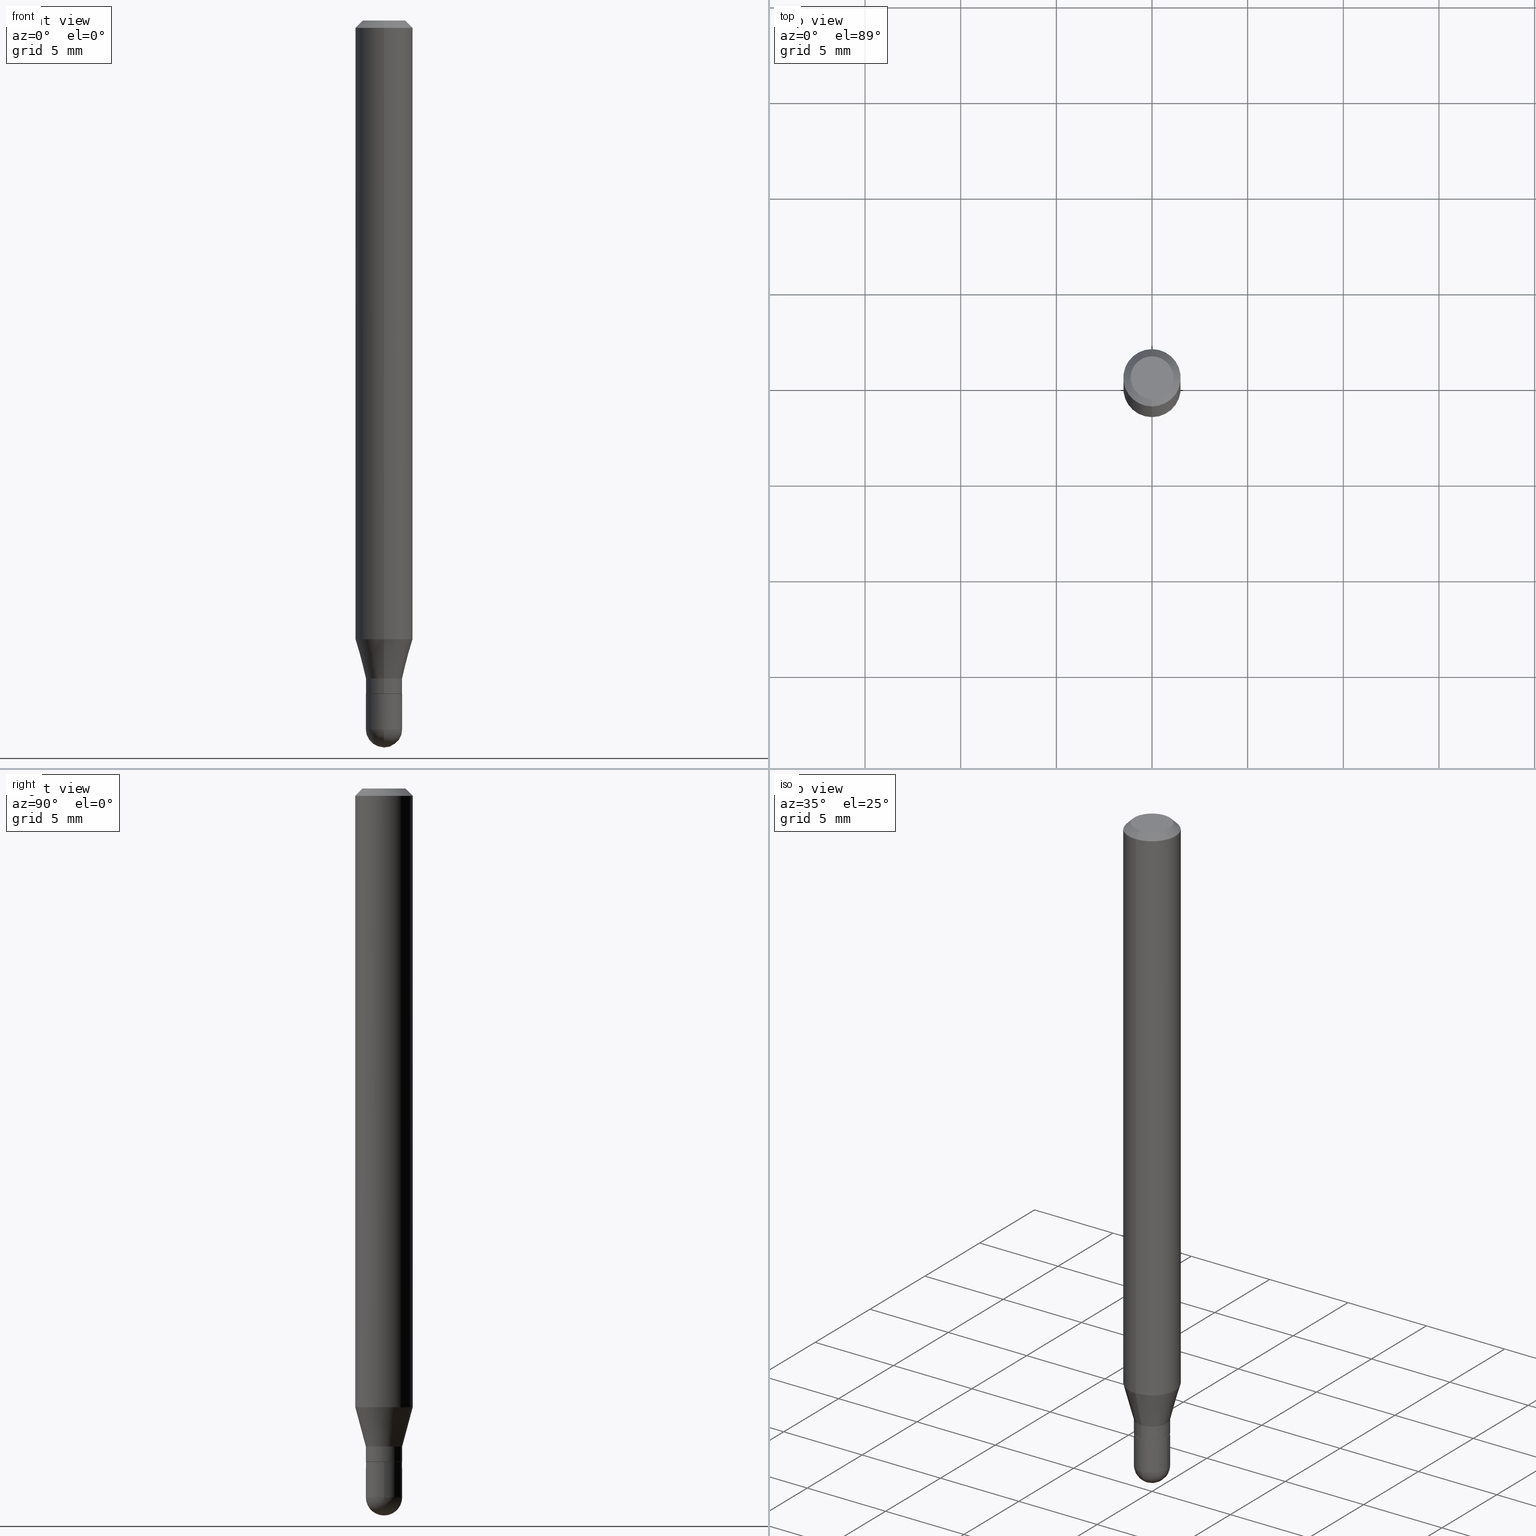
[diagram: canonical four-view strip — front | top / right | iso, engineering-drawing reading convention]
A machine part, canonical four-view strip (front | top / right | iso — engineering-drawing reading convention). The complete STEP part file that produces these views, byte-faithful:
ISO-10303-21;
HEADER;
FILE_DESCRIPTION (( 'STEP AP203' ),
    '1' );
FILE_NAME ('02936.STEP',
    '2024-03-07T21:52:10',
    ( '' ),
    ( '' ),
    'SwSTEP 2.0',
    'SolidWorks 2023',
    '' );
FILE_SCHEMA (( 'CONFIG_CONTROL_DESIGN' ));
ENDSEC;

DATA;
#1 = ORIENTED_EDGE ( 'NONE', *, *, #473, .T. ) ;
#2 = ADVANCED_FACE ( 'NONE', ( #359 ), #448, .T. ) ;
#3 = SPHERICAL_SURFACE ( 'NONE', #140, 0.03739999999999999575 ) ;
#4 = ORIENTED_EDGE ( 'NONE', *, *, #281, .T. ) ;
#5 = AXIS2_PLACEMENT_3D ( 'NONE', #306, #431, #347 ) ;
#6 = PERSON_AND_ORGANIZATION_ROLE ( 'creator' ) ;
#7 = CARTESIAN_POINT ( 'NONE',  ( 4.195754854663704558E-16, 0.05904999999999994975, -0.01500000000000029955 ) ) ;
#8 = ORIENTED_EDGE ( 'NONE', *, *, #374, .T. ) ;
#9 = DIRECTION ( 'NONE',  ( 1.000000000000000000, -6.982962677686265922E-15, 4.883557194083112901E-29 ) ) ;
#10 = DIRECTION ( 'NONE',  ( 6.982962677686265922E-15, 1.000000000000000000, -3.491556839184075306E-15 ) ) ;
#11 = DIRECTION ( 'NONE',  ( -6.982962677686265133E-15, -1.000000000000000000, 0.000000000000000000 ) ) ;
#12 = ORIENTED_EDGE ( 'NONE', *, *, #148, .F. ) ;
#13 = DIRECTION ( 'NONE',  ( -2.445416084578850208E-29, 3.491556839184075306E-15, 1.000000000000000000 ) ) ;
#14 = CARTESIAN_POINT ( 'NONE',  ( 0.000000000000000000, 0.000000000000000000, 0.000000000000000000 ) ) ;
#15 = EDGE_CURVE ( 'NONE', #165, #488, #216, .T. ) ;
#16 = ORIENTED_EDGE ( 'NONE', *, *, #166, .F. ) ;
#17 = AXIS2_PLACEMENT_3D ( 'NONE', #283, #13, #161 ) ;
#18 = DIRECTION ( 'NONE',  ( -6.982962677686265922E-15, -1.000000000000000000, 4.626330217890369336E-15 ) ) ;
#19 = ORIENTED_EDGE ( 'NONE', *, *, #301, .T. ) ;
#20 = DIRECTION ( 'NONE',  ( -2.445468806185136597E-29, 3.491481338843145583E-15, 1.000000000000000000 ) ) ;
#21 = ORIENTED_EDGE ( 'NONE', *, *, #484, .F. ) ;
#22 = CARTESIAN_POINT ( 'NONE',  ( 3.389102151617828259E-29, -4.838948623425209322E-15, -1.385899999999999910 ) ) ;
#23 = CALENDAR_DATE ( 2024, 7, 3 ) ;
#24 = CIRCLE ( 'NONE', #413, 0.03739999999999992636 ) ;
#25 = VECTOR ( 'NONE', #443, 39.37007874015748143 ) ;
#26 = SECURITY_CLASSIFICATION_LEVEL ( 'unclassified' ) ;
#27 = DIRECTION ( 'NONE',  ( -4.937700262164674260E-15, -0.7071067811865632269, 0.7071067811865319186 ) ) ;
#28 = DIRECTION ( 'NONE',  ( -6.982962677686265133E-15, -1.000000000000000000, 3.491556839184075306E-15 ) ) ;
#29 = CARTESIAN_POINT ( 'NONE',  ( -2.611628041454307043E-16, -0.03740000000000509583, -1.458699999999999886 ) ) ;
#30 = EDGE_CURVE ( 'NONE', #311, #126, #73, .T. ) ;
#31 = DIRECTION ( 'NONE',  ( -2.445416084578850208E-29, 3.491556839184075306E-15, 1.000000000000000000 ) ) ;
#32 = VECTOR ( 'NONE', #497, 39.37007874015748143 ) ;
#33 = CIRCLE ( 'NONE', #50, 0.03739999999999999575 ) ;
#34 = AXIS2_PLACEMENT_3D ( 'NONE', #276, #9, #480 ) ;
#35 = DIRECTION ( 'NONE',  ( -2.445416084578850208E-29, 3.491556839184075306E-15, 1.000000000000000000 ) ) ;
#36 = ORGANIZATION ( 'UNSPECIFIED', 'UNSPECIFIED', '' ) ;
#37 = CARTESIAN_POINT ( 'NONE',  ( 4.195754854663699134E-16, 0.05904999999999551580, -1.273301100016134058 ) ) ;
#38 = EDGE_CURVE ( 'NONE', #440, #387, #24, .T. ) ;
#39 = VERTEX_POINT ( 'NONE', #287 ) ;
#40 = CIRCLE ( 'NONE', #328, 0.03739999999999992636 ) ;
#41 = CC_DESIGN_SECURITY_CLASSIFICATION ( #372, ( #105 ) ) ;
#42 = ADVANCED_FACE ( 'NONE', ( #295 ), #462, .T. ) ;
#43 = DIRECTION ( 'NONE',  ( -6.982962677686265133E-15, -1.000000000000000000, 0.000000000000000000 ) ) ;
#44 = ORIENTED_EDGE ( 'NONE', *, *, #221, .F. ) ;
#45 = CARTESIAN_POINT ( 'NONE',  ( -2.611628041454328736E-16, -0.03740000000000489461, -1.385399999999999965 ) ) ;
#46 = EDGE_LOOP ( 'NONE', ( #340, #312 ) ) ;
#47 = DIRECTION ( 'NONE',  ( -6.982962677686265133E-15, -1.000000000000000000, 0.000000000000000000 ) ) ;
#48 = FACE_OUTER_BOUND ( 'NONE', #46, .T. ) ;
#49 = VERTEX_POINT ( 'NONE', #377 ) ;
#50 = AXIS2_PLACEMENT_3D ( 'NONE', #175, #417, #171 ) ;
#51 = CC_DESIGN_APPROVAL ( #200, ( #99 ) ) ;
#52 = DIRECTION ( 'NONE',  ( -2.445416084578850208E-29, 3.491556839184075306E-15, 1.000000000000000000 ) ) ;
#53 = EDGE_CURVE ( 'NONE', #159, #165, #33, .T. ) ;
#54 = EDGE_LOOP ( 'NONE', ( #432, #97, #114, #444 ) ) ;
#55 = CARTESIAN_POINT ( 'NONE',  ( 3.668124126868297488E-31, -5.237335258776145500E-17, -0.01500000000000009139 ) ) ;
#56 = COORDINATED_UNIVERSAL_TIME_OFFSET ( 5, 0, .BEHIND. ) ;
#57 = AXIS2_PLACEMENT_3D ( 'NONE', #252, #139, #62 ) ;
#58 = DIRECTION ( 'NONE',  ( -6.982962677686265922E-15, -1.000000000000000000, 0.000000000000000000 ) ) ;
#59 = CIRCLE ( 'NONE', #245, 0.03739999999999999575 ) ;
#60 = EDGE_CURVE ( 'NONE', #440, #263, #335, .T. ) ;
#61 = ADVANCED_FACE ( 'NONE', ( #290 ), #425, .T. ) ;
#62 = DIRECTION ( 'NONE',  ( -6.982962677686265922E-15, -1.000000000000000000, 3.491556839184075306E-15 ) ) ;
#63 = DIRECTION ( 'NONE',  ( -6.982962677686265133E-15, -1.000000000000000000, 0.000000000000000000 ) ) ;
#64 = PERSON_AND_ORGANIZATION ( #314, #36 ) ;
#65 = CARTESIAN_POINT ( 'NONE',  ( 3.389175218491980624E-29, -4.838843987502714496E-15, -1.385899999999999910 ) ) ;
#66 = CARTESIAN_POINT ( 'NONE',  ( -4.123439461173431685E-16, -0.05905000000000448085, -1.273301100016133613 ) ) ;
#67 = AXIS2_PLACEMENT_3D ( 'NONE', #483, #20, #128 ) ;
#68 = APPROVAL_STATUS ( 'not_yet_approved' ) ;
#69 = FACE_OUTER_BOUND ( 'NONE', #189, .T. ) ;
#70 = DATE_TIME_ROLE ( 'classification_date' ) ;
#71 = LINE ( 'NONE', #511, #74 ) ;
#72 = DIRECTION ( 'NONE',  ( -2.445416084578850208E-29, 3.491556839184075306E-15, 1.000000000000000000 ) ) ;
#73 = CIRCLE ( 'NONE', #150, 0.04404999999999999888 ) ;
#74 = VECTOR ( 'NONE', #92, 39.37007874015748143 ) ;
#75 =( CONVERSION_BASED_UNIT ( 'INCH', #510 ) LENGTH_UNIT ( ) NAMED_UNIT ( #258 ) );
#76 = EDGE_LOOP ( 'NONE', ( #394, #19, #157, #348 ) ) ;
#77 = ORIENTED_EDGE ( 'NONE', *, *, #179, .T. ) ;
#78 = DIRECTION ( 'NONE',  ( 1.000000000000000000, -6.982962677686274599E-15, 0.000000000000000000 ) ) ;
#79 = APPROVAL_ROLE ( '' ) ;
#80 = CARTESIAN_POINT ( 'NONE',  ( -0.03740000000000000269, -4.700190925062328088E-15, -1.385899999999999910 ) ) ;
#81 = VECTOR ( 'NONE', #217, 39.37007874015748143 ) ;
#82 = EDGE_LOOP ( 'NONE', ( #199, #383, #397, #44 ) ) ;
#83 = LOCAL_TIME ( 16, 52, 10.00000000000000000, #146 ) ;
#84 = ORIENTED_EDGE ( 'NONE', *, *, #428, .T. ) ;
#85 = PERSON_AND_ORGANIZATION ( #314, #36 ) ;
#86 = CARTESIAN_POINT ( 'NONE',  ( 3.567205347582258439E-29, -5.093023828970496460E-15, -1.458699999999999886 ) ) ;
#87 = ORIENTED_EDGE ( 'NONE', *, *, #15, .T. ) ;
#88 = DIRECTION ( 'NONE',  ( -2.445416084578850208E-29, 3.491556839184075306E-15, 1.000000000000000000 ) ) ;
#89 = APPLICATION_CONTEXT ( 'configuration controlled 3d designs of mechanical parts and assemblies' ) ;
#90 = EDGE_CURVE ( 'NONE', #416, #466, #293, .T. ) ;
#91 = CARTESIAN_POINT ( 'NONE',  ( 3.311337920128220796E-29, -4.727917115939155716E-15, -1.354099999999999859 ) ) ;
#92 = DIRECTION ( 'NONE',  ( -1.807323732225332900E-15, -0.2588190451025185745, 0.9659258262890689783 ) ) ;
#93 = AXIS2_PLACEMENT_3D ( 'NONE', #479, #445, #384 ) ;
#94 = LOCAL_TIME ( 16, 52, 10.00000000000000000, #457 ) ;
#95 = CARTESIAN_POINT ( 'NONE',  ( 4.195754854663390985E-16, 0.05904999999999999832, -2.061764313538196479E-16 ) ) ;
#96 = LOCAL_TIME ( 16, 52, 10.00000000000000000, #119 ) ;
#97 = ORIENTED_EDGE ( 'NONE', *, *, #132, .T. ) ;
#98 = PERSON_AND_ORGANIZATION_ROLE ( 'classification_officer' ) ;
#99 = PRODUCT_DEFINITION ( 'UNKNOWN', '', #105, #437 ) ;
#100 = CLOSED_SHELL ( 'NONE', ( #2, #309, #113, #313, #346 ) ) ;
#101 = DIRECTION ( 'NONE',  ( -6.982962677686265133E-15, -1.000000000000000000, 3.491556839184075306E-15 ) ) ;
#102 = LOCAL_TIME ( 16, 52, 10.00000000000000000, #56 ) ;
#103 = DATE_AND_TIME ( #456, #83 ) ;
#104 = DATE_TIME_ROLE ( 'creation_date' ) ;
#105 = PRODUCT_DEFINITION_FORMATION_WITH_SPECIFIED_SOURCE ( 'ANY', '', #349, .NOT_KNOWN. ) ;
#106 = ADVANCED_BREP_SHAPE_REPRESENTATION ( '02936', ( #111, #112, #257 ), #251 ) ;
#107 = CARTESIAN_POINT ( 'NONE',  ( 0.03739999999999999575, -5.227096712382071878E-15, -1.458699999999999886 ) ) ;
#108 = DIRECTION ( 'NONE',  ( -6.982962677686265133E-15, -1.000000000000000000, 0.000000000000000000 ) ) ;
#109 = ORIENTED_EDGE ( 'NONE', *, *, #428, .F. ) ;
#110 = ORIENTED_EDGE ( 'NONE', *, *, #30, .F. ) ;
#111 = MANIFOLD_SOLID_BREP ( 'Body-Move/Copy2[1]', #100 ) ;
#112 = MANIFOLD_SOLID_BREP ( 'Body-Move/Copy2[2]', #278 ) ;
#113 = ADVANCED_FACE ( 'NONE', ( #331 ), #218, .F. ) ;
#114 = ORIENTED_EDGE ( 'NONE', *, *, #53, .F. ) ;
#115 = AXIS2_PLACEMENT_3D ( 'NONE', #512, #286, #58 ) ;
#116 = CIRCLE ( 'NONE', #163, 0.05904999999999999832 ) ;
#117 = DIRECTION ( 'NONE',  ( 4.937700262164548042E-15, 0.7071067811865451302, -0.7071067811865499042 ) ) ;
#118 = CARTESIAN_POINT ( 'NONE',  ( -2.611628041454327257E-16, -0.03740000000000465175, -1.354099999999999859 ) ) ;
#119 = COORDINATED_UNIVERSAL_TIME_OFFSET ( 5, 0, .BEHIND. ) ;
#120 = ORIENTED_EDGE ( 'NONE', *, *, #179, .F. ) ;
#121 = LINE ( 'NONE', #164, #433 ) ;
#122 = ORIENTED_EDGE ( 'NONE', *, *, #430, .F. ) ;
#123 = AXIS2_PLACEMENT_3D ( 'NONE', #404, #177, #334 ) ;
#124 = DIRECTION ( 'NONE',  ( 1.000000000000000000, -6.982962677686276177E-15, 0.000000000000000000 ) ) ;
#125 = CARTESIAN_POINT ( 'NONE',  ( 2.241504749547328887E-45, -3.200412922651327625E-31, -9.166148712616163754E-17 ) ) ;
#126 = VERTEX_POINT ( 'NONE', #190 ) ;
#127 = CARTESIAN_POINT ( 'NONE',  ( 3.564007025660728008E-29, -5.097604007999306661E-15, -1.458699999999999886 ) ) ;
#128 = DIRECTION ( 'NONE',  ( 1.000000000000000000, -6.982962677686276177E-15, 0.000000000000000000 ) ) ;
#129 = ORIENTED_EDGE ( 'NONE', *, *, #38, .T. ) ;
#130 = AXIS2_PLACEMENT_3D ( 'NONE', #375, #35, #28 ) ;
#131 = CARTESIAN_POINT ( 'NONE',  ( 3.668124126868297488E-31, -5.237335258776145500E-17, -0.01500000000000009139 ) ) ;
#132 = EDGE_CURVE ( 'NONE', #227, #165, #441, .T. ) ;
#133 = APPLICATION_CONTEXT ( 'configuration controlled 3d designs of mechanical parts and assemblies' ) ;
#134 = DIRECTION ( 'NONE',  ( -6.982962677686265133E-15, -1.000000000000000000, 0.000000000000000000 ) ) ;
#135 = CARTESIAN_POINT ( 'NONE',  ( -4.123439461173736383E-16, -0.05905000000000005383, -0.01499999999999988495 ) ) ;
#136 = ADVANCED_FACE ( 'NONE', ( #336 ), #212, .T. ) ;
#137 = FACE_OUTER_BOUND ( 'NONE', #308, .T. ) ;
#138 = COORDINATED_UNIVERSAL_TIME_OFFSET ( 5, 0, .BEHIND. ) ;
#139 = DIRECTION ( 'NONE',  ( -2.445416084578850208E-29, 3.491556839184075306E-15, 1.000000000000000000 ) ) ;
#140 = AXIS2_PLACEMENT_3D ( 'NONE', #474, #354, #147 ) ;
#141 = ADVANCED_FACE ( 'NONE', ( #137 ), #501, .T. ) ;
#142 = CARTESIAN_POINT ( 'NONE',  ( 2.621902694955108069E-16, 0.03689999999999515889, -1.385899999999999910 ) ) ;
#143 = ORIENTED_EDGE ( 'NONE', *, *, #506, .F. ) ;
#144 = CIRCLE ( 'NONE', #353, 0.03739999999999992636 ) ;
#145 = ORIENTED_EDGE ( 'NONE', *, *, #430, .T. ) ;
#146 = COORDINATED_UNIVERSAL_TIME_OFFSET ( 5, 0, .BEHIND. ) ;
#147 = DIRECTION ( 'NONE',  ( -6.982962677686265922E-15, -1.000000000000000000, 0.000000000000000000 ) ) ;
#148 = EDGE_CURVE ( 'NONE', #192, #263, #361, .T. ) ;
#149 = ORIENTED_EDGE ( 'NONE', *, *, #208, .T. ) ;
#150 = AXIS2_PLACEMENT_3D ( 'NONE', #125, #52, #195 ) ;
#151 = ORIENTED_EDGE ( 'NONE', *, *, #326, .F. ) ;
#152 = AXIS2_PLACEMENT_3D ( 'NONE', #154, #363, #322 ) ;
#153 =( NAMED_UNIT ( * ) SI_UNIT ( $, .STERADIAN. ) SOLID_ANGLE_UNIT ( ) );
#154 = CARTESIAN_POINT ( 'NONE',  ( 3.387879443575538976E-29, -4.837202845005617549E-15, -1.385399999999999965 ) ) ;
#155 = DIRECTION ( 'NONE',  ( -2.445468806185136597E-29, 3.491481338843145583E-15, 1.000000000000000000 ) ) ;
#156 = ORIENTED_EDGE ( 'NONE', *, *, #447, .T. ) ;
#157 = ORIENTED_EDGE ( 'NONE', *, *, #90, .T. ) ;
#158 = FACE_OUTER_BOUND ( 'NONE', #76, .T. ) ;
#159 = VERTEX_POINT ( 'NONE', #339 ) ;
#160 = DIRECTION ( 'NONE',  ( 6.982962677686265922E-15, 1.000000000000000000, -3.505890868245046092E-15 ) ) ;
#161 = DIRECTION ( 'NONE',  ( -6.982962677686265133E-15, -1.000000000000000000, 0.000000000000000000 ) ) ;
#162 = VECTOR ( 'NONE', #327, 39.37007874015748143 ) ;
#163 = AXIS2_PLACEMENT_3D ( 'NONE', #318, #316, #18 ) ;
#164 = CARTESIAN_POINT ( 'NONE',  ( 0.03739999999999999575, -2.611628041454663509E-16, 1.823690114147680082E-30 ) ) ;
#165 = VERTEX_POINT ( 'NONE', #29 ) ;
#166 = EDGE_CURVE ( 'NONE', #39, #440, #174, .T. ) ;
#167 = MECHANICAL_CONTEXT ( 'NONE', #89, 'mechanical' ) ;
#168 = PERSON_AND_ORGANIZATION ( #314, #36 ) ;
#169 = CIRCLE ( 'NONE', #204, 0.03740000000000000269 ) ;
#170 = CIRCLE ( 'NONE', #152, 0.03739999999999992636 ) ;
#171 = DIRECTION ( 'NONE',  ( 1.000000000000000000, -6.982962677686276177E-15, 0.000000000000000000 ) ) ;
#172 = ADVANCED_FACE ( 'NONE', ( #424 ), #500, .T. ) ;
#173 = ORIENTED_EDGE ( 'NONE', *, *, #202, .T. ) ;
#174 = LINE ( 'NONE', #332, #32 ) ;
#175 = CARTESIAN_POINT ( 'NONE',  ( 3.567205347582258439E-29, -5.093023828970496460E-15, -1.458699999999999886 ) ) ;
#176 = DIRECTION ( 'NONE',  ( -2.445416084578850208E-29, 3.491556839184075306E-15, 1.000000000000000000 ) ) ;
#177 = DIRECTION ( 'NONE',  ( -2.445468806185136597E-29, 3.491481338843145583E-15, 1.000000000000000000 ) ) ;
#178 = AXIS2_PLACEMENT_3D ( 'NONE', #254, #31, #423 ) ;
#179 = EDGE_CURVE ( 'NONE', #471, #284, #185, .T. ) ;
#180 = DIRECTION ( 'NONE',  ( -2.445468806185136597E-29, 3.491481338843145583E-15, 1.000000000000000000 ) ) ;
#181 = AXIS2_PLACEMENT_3D ( 'NONE', #356, #446, #10 ) ;
#182 = VERTEX_POINT ( 'NONE', #299 ) ;
#183 = EDGE_LOOP ( 'NONE', ( #223, #173, #436, #407 ) ) ;
#184 = CYLINDRICAL_SURFACE ( 'NONE', #233, 0.05904999999999999832 ) ;
#185 = CIRCLE ( 'NONE', #303, 0.03740000000000000269 ) ;
#186 = ADVANCED_FACE ( 'NONE', ( #455 ), #209, .T. ) ;
#187 = AXIS2_PLACEMENT_3D ( 'NONE', #226, #305, #469 ) ;
#188 = DIRECTION ( 'NONE',  ( 2.438088387897960049E-29, -3.491481338843145188E-15, -1.000000000000000000 ) ) ;
#189 = EDGE_LOOP ( 'NONE', ( #201, #317, #324, #355 ) ) ;
#190 = CARTESIAN_POINT ( 'NONE',  ( -3.536586717851222218E-16, -0.04404999999999999888, 6.214159163989687585E-17 ) ) ;
#191 = VERTEX_POINT ( 'NONE', #135 ) ;
#192 = VERTEX_POINT ( 'NONE', #66 ) ;
#193 = DIRECTION ( 'NONE',  ( -2.445416084578850208E-29, 3.491556839184075306E-15, 1.000000000000000000 ) ) ;
#194 = PERSON_AND_ORGANIZATION_ROLE ( 'design_owner' ) ;
#195 = DIRECTION ( 'NONE',  ( -6.982962677686265133E-15, -1.000000000000000000, 3.491556839184075306E-15 ) ) ;
#196 = ORIENTED_EDGE ( 'NONE', *, *, #326, .T. ) ;
#197 = DIRECTION ( 'NONE',  ( 1.000000000000000000, -7.105427357601001070E-15, 4.926315508542082329E-29 ) ) ;
#198 = CARTESIAN_POINT ( 'NONE',  ( -2.576713228065893242E-16, -0.03690000000000483865, -1.385899999999999910 ) ) ;
#199 = ORIENTED_EDGE ( 'NONE', *, *, #365, .T. ) ;
#200 = APPROVAL ( #236, 'UNSPECIFIED' ) ;
#201 = ORIENTED_EDGE ( 'NONE', *, *, #148, .T. ) ;
#202 = EDGE_CURVE ( 'NONE', #49, #39, #292, .T. ) ;
#203 = VECTOR ( 'NONE', #27, 39.37007874015748143 ) ;
#204 = AXIS2_PLACEMENT_3D ( 'NONE', #486, #369, #78 ) ;
#205 = CALENDAR_DATE ( 2024, 7, 3 ) ;
#206 = DIRECTION ( 'NONE',  ( -2.445416084578850208E-29, 3.491556839184075306E-15, 1.000000000000000000 ) ) ;
#207 = EDGE_LOOP ( 'NONE', ( #291, #84, #156, #259 ) ) ;
#208 = EDGE_CURVE ( 'NONE', #323, #191, #244, .T. ) ;
#209 = CYLINDRICAL_SURFACE ( 'NONE', #57, 0.05904999999999999832 ) ;
#210 = AXIS2_PLACEMENT_3D ( 'NONE', #127, #197, #239 ) ;
#211 = DIRECTION ( 'NONE',  ( -2.445416084578850208E-29, 3.491556839184075306E-15, 1.000000000000000000 ) ) ;
#212 = CYLINDRICAL_SURFACE ( 'NONE', #130, 0.03739999999999992636 ) ;
#213 = CARTESIAN_POINT ( 'NONE',  ( -2.611628041454658086E-16, -0.03739999999999992636, 1.305842257854841589E-16 ) ) ;
#214 = APPROVAL_ROLE ( '' ) ;
#215 = APPROVAL_ROLE ( '' ) ;
#216 = CIRCLE ( 'NONE', #67, 0.03739999999999999575 ) ;
#217 = DIRECTION ( 'NONE',  ( 5.024295867788190974E-15, 0.7071067811865681119, 0.7071067811865270336 ) ) ;
#218 = PLANE ( 'NONE',  #467 ) ;
#219 = CARTESIAN_POINT ( 'NONE',  ( 3.389102151617828259E-29, -4.838948623425209322E-15, -1.385899999999999910 ) ) ;
#220 = ORIENTED_EDGE ( 'NONE', *, *, #266, .T. ) ;
#221 = EDGE_CURVE ( 'NONE', #466, #387, #381, .T. ) ;
#222 = DIRECTION ( 'NONE',  ( -2.445416084578849928E-29, 3.491556839184075306E-15, 1.000000000000000000 ) ) ;
#223 = ORIENTED_EDGE ( 'NONE', *, *, #490, .T. ) ;
#224 = CIRCLE ( 'NONE', #403, 0.03690000000000000224 ) ;
#225 = CARTESIAN_POINT ( 'NONE',  ( 3.387879443575538976E-29, -4.837202845005617549E-15, -1.385399999999999965 ) ) ;
#226 = CARTESIAN_POINT ( 'NONE',  ( 2.241504749547328887E-45, -3.200412922651327625E-31, -9.166148712616163754E-17 ) ) ;
#227 = VERTEX_POINT ( 'NONE', #378 ) ;
#228 = DIRECTION ( 'NONE',  ( -2.445416084578850208E-29, 3.491556839184075306E-15, 1.000000000000000000 ) ) ;
#229 = DATE_AND_TIME ( #247, #102 ) ;
#230 = DIRECTION ( 'NONE',  ( 0.000000000000000000, 0.000000000000000000, 1.000000000000000000 ) ) ;
#231 = DIRECTION ( 'NONE',  ( 2.445416084578850208E-29, -3.491556839184075306E-15, -1.000000000000000000 ) ) ;
#232 = FACE_OUTER_BOUND ( 'NONE', #54, .T. ) ;
#233 = AXIS2_PLACEMENT_3D ( 'NONE', #341, #509, #429 ) ;
#234 = EDGE_LOOP ( 'NONE', ( #409, #129, #280, #109 ) ) ;
#235 = CARTESIAN_POINT ( 'NONE',  ( 3.599717260347271507E-16, 0.04404999999999999888, -2.454645658922201879E-16 ) ) ;
#236 = APPROVAL_STATUS ( 'not_yet_approved' ) ;
#237 = FACE_OUTER_BOUND ( 'NONE', #382, .T. ) ;
#238 = PERSON_AND_ORGANIZATION ( #314, #36 ) ;
#239 = DIRECTION ( 'NONE',  ( 7.105427357601001859E-15, 1.000000000000000000, 0.000000000000000000 ) ) ;
#240 = EDGE_CURVE ( 'NONE', #159, #471, #418, .T. ) ;
#241 = CARTESIAN_POINT ( 'NONE',  ( 3.389102151617828259E-29, -4.838948623425209322E-15, -1.385899999999999910 ) ) ;
#242 = PERSON_AND_ORGANIZATION ( #314, #36 ) ;
#243 = AXIS2_PLACEMENT_3D ( 'NONE', #131, #300, #465 ) ;
#244 = CIRCLE ( 'NONE', #243, 0.05904999999999999832 ) ;
#245 = AXIS2_PLACEMENT_3D ( 'NONE', #86, #408, #124 ) ;
#246 = DIRECTION ( 'NONE',  ( -2.445416084578850208E-29, 3.491556839184075306E-15, 1.000000000000000000 ) ) ;
#247 = CALENDAR_DATE ( 2024, 7, 3 ) ;
#248 = ORIENTED_EDGE ( 'NONE', *, *, #374, .F. ) ;
#249 = APPROVAL_DATE_TIME ( #325, #270 ) ;
#250 = UNCERTAINTY_MEASURE_WITH_UNIT (LENGTH_MEASURE( 1.000000000000000082E-05 ), #75, 'distance_accuracy_value', 'NONE');
#251 =( GEOMETRIC_REPRESENTATION_CONTEXT ( 3 ) GLOBAL_UNCERTAINTY_ASSIGNED_CONTEXT ( ( #250 ) ) GLOBAL_UNIT_ASSIGNED_CONTEXT ( ( #75, #320, #153 ) ) REPRESENTATION_CONTEXT ( 'NONE', 'WORKASPACE' ) );
#252 = CARTESIAN_POINT ( 'NONE',  ( 0.000000000000000000, 0.000000000000000000, 0.000000000000000000 ) ) ;
#253 = APPROVAL_DATE_TIME ( #103, #388 ) ;
#254 = CARTESIAN_POINT ( 'NONE',  ( 3.113750990491396725E-29, -4.445803164101938661E-15, -1.273301100016133836 ) ) ;
#255 = AXIS2_PLACEMENT_3D ( 'NONE', #55, #231, #160 ) ;
#256 = ADVANCED_FACE ( 'NONE', ( #294 ), #489, .T. ) ;
#257 = AXIS2_PLACEMENT_3D ( 'NONE', #487, #230, #399 ) ;
#258 = DIMENSIONAL_EXPONENTS ( 1.000000000000000000, 0.000000000000000000, 0.000000000000000000, 0.000000000000000000, 0.000000000000000000, 0.000000000000000000, 0.000000000000000000 ) ;
#259 = ORIENTED_EDGE ( 'NONE', *, *, #208, .F. ) ;
#260 = EDGE_CURVE ( 'NONE', #191, #323, #401, .T. ) ;
#261 = CARTESIAN_POINT ( 'NONE',  ( 3.389102151617828259E-29, -4.838948623425209322E-15, -1.385899999999999910 ) ) ;
#262 = LINE ( 'NONE', #386, #463 ) ;
#263 = VERTEX_POINT ( 'NONE', #37 ) ;
#264 = FACE_OUTER_BOUND ( 'NONE', #449, .T. ) ;
#265 = ORIENTED_EDGE ( 'NONE', *, *, #38, .F. ) ;
#266 = EDGE_CURVE ( 'NONE', #387, #440, #40, .T. ) ;
#267 = AXIS2_PLACEMENT_3D ( 'NONE', #261, #228, #427 ) ;
#268 =( LENGTH_UNIT ( ) NAMED_UNIT ( * ) SI_UNIT ( $, .METRE. ) );
#269 = EDGE_LOOP ( 'NONE', ( #248, #110, #452, #149 ) ) ;
#270 = APPROVAL ( #434, 'UNSPECIFIED' ) ;
#271 = ORIENTED_EDGE ( 'NONE', *, *, #132, .F. ) ;
#272 = CALENDAR_DATE ( 2024, 7, 3 ) ;
#273 = LINE ( 'NONE', #95, #338 ) ;
#274 = DIRECTION ( 'NONE',  ( 1.000000000000000000, -6.982962677686266711E-15, 4.876176775795936353E-29 ) ) ;
#275 = EDGE_CURVE ( 'NONE', #284, #471, #169, .T. ) ;
#276 = CARTESIAN_POINT ( 'NONE',  ( 3.564007025660728008E-29, -5.097604007999306661E-15, -1.458699999999999886 ) ) ;
#277 = APPLICATION_PROTOCOL_DEFINITION ( 'international standard', 'config_control_design', 1994, #133 ) ;
#278 = CLOSED_SHELL ( 'NONE', ( #172, #470, #141, #499, #61, #42, #186, #256, #400, #505, #419, #136 ) ) ;
#279 = LINE ( 'NONE', #358, #25 ) ;
#280 = ORIENTED_EDGE ( 'NONE', *, *, #503, .T. ) ;
#281 = EDGE_CURVE ( 'NONE', #227, #182, #414, .T. ) ;
#282 = PRODUCT_DEFINITION_SHAPE ( 'NONE', 'NONE',  #99 ) ;
#283 = CARTESIAN_POINT ( 'NONE',  ( 3.389102151617828259E-29, -4.838948623425209322E-15, -1.385899999999999910 ) ) ;
#284 = VERTEX_POINT ( 'NONE', #450 ) ;
#285 = ORIENTED_EDGE ( 'NONE', *, *, #53, .T. ) ;
#286 = DIRECTION ( 'NONE',  ( -1.000000000000000000, 6.982962677686265922E-15, -4.883557194083112340E-29 ) ) ;
#287 = CARTESIAN_POINT ( 'NONE',  ( 2.657429831743098319E-16, 0.03739999999999495811, -1.385399999999999965 ) ) ;
#288 = LOCAL_TIME ( 16, 52, 10.00000000000000000, #138 ) ;
#289 = EDGE_LOOP ( 'NONE', ( #1, #405, #453, #122, #368 ) ) ;
#290 = FACE_OUTER_BOUND ( 'NONE', #412, .T. ) ;
#291 = ORIENTED_EDGE ( 'NONE', *, *, #297, .F. ) ;
#292 = LINE ( 'NONE', #142, #81 ) ;
#293 = LINE ( 'NONE', #459, #203 ) ;
#294 = FACE_OUTER_BOUND ( 'NONE', #269, .T. ) ;
#295 = FACE_OUTER_BOUND ( 'NONE', #234, .T. ) ;
#296 = DIRECTION ( 'NONE',  ( -2.445416084578850208E-29, 3.491556839184075306E-15, 1.000000000000000000 ) ) ;
#297 = EDGE_CURVE ( 'NONE', #263, #323, #273, .T. ) ;
#298 = AXIS2_PLACEMENT_3D ( 'NONE', #219, #222, #344 ) ;
#299 = CARTESIAN_POINT ( 'NONE',  ( 2.657429831743130367E-16, 0.03739999999999490260, -1.458699999999999886 ) ) ;
#300 = DIRECTION ( 'NONE',  ( -2.445416084578850208E-29, 3.491556839184075306E-15, 1.000000000000000000 ) ) ;
#301 = EDGE_CURVE ( 'NONE', #49, #416, #224, .T. ) ;
#302 = ORIENTED_EDGE ( 'NONE', *, *, #60, .T. ) ;
#303 = AXIS2_PLACEMENT_3D ( 'NONE', #65, #180, #504 ) ;
#304 = APPROVAL_PERSON_ORGANIZATION ( #85, #200, #214 ) ;
#305 = DIRECTION ( 'NONE',  ( -2.445416084578850208E-29, 3.491556839184075306E-15, 1.000000000000000000 ) ) ;
#306 = CARTESIAN_POINT ( 'NONE',  ( 0.000000000000000000, 0.000000000000000000, 0.000000000000000000 ) ) ;
#307 = LINE ( 'NONE', #396, #342 ) ;
#308 = EDGE_LOOP ( 'NONE', ( #151, #8, #477, #143 ) ) ;
#309 = ADVANCED_FACE ( 'NONE', ( #360 ), #402, .T. ) ;
#310 = APPROVAL_PERSON_ORGANIZATION ( #64, #388, #215 ) ;
#311 = VERTEX_POINT ( 'NONE', #235 ) ;
#312 = ORIENTED_EDGE ( 'NONE', *, *, #301, .F. ) ;
#313 = ADVANCED_FACE ( 'NONE', ( #232 ), #3, .T. ) ;
#314 = PERSON ( 'UNSPECIFIED', 'UNSPECIFIED', 'UNSPECIFIED', ('UNSPECIFIED'), ('UNSPECIFIED'), ('UNSPECIFIED') ) ;
#315 = APPLICATION_PROTOCOL_DEFINITION ( 'international standard', 'config_control_design', 1994, #89 ) ;
#316 = DIRECTION ( 'NONE',  ( -2.445416084578850208E-29, 3.491556839184075306E-15, 1.000000000000000000 ) ) ;
#317 = ORIENTED_EDGE ( 'NONE', *, *, #297, .T. ) ;
#318 = CARTESIAN_POINT ( 'NONE',  ( 3.113750990491396725E-29, -4.445803164101938661E-15, -1.273301100016133836 ) ) ;
#319 = CC_DESIGN_APPROVAL ( #388, ( #105 ) ) ;
#320 =( NAMED_UNIT ( * ) PLANE_ANGLE_UNIT ( ) SI_UNIT ( $, .RADIAN. ) );
#321 = PERSON_AND_ORGANIZATION_ROLE ( 'design_supplier' ) ;
#322 = DIRECTION ( 'NONE',  ( -6.982962677686265133E-15, -1.000000000000000000, 0.000000000000000000 ) ) ;
#323 = VERTEX_POINT ( 'NONE', #7 ) ;
#324 = ORIENTED_EDGE ( 'NONE', *, *, #260, .F. ) ;
#325 = DATE_AND_TIME ( #205, #288 ) ;
#326 = EDGE_CURVE ( 'NONE', #126, #311, #492, .T. ) ;
#327 = DIRECTION ( 'NONE',  ( -2.445416084578850208E-29, 3.491556839184075306E-15, 1.000000000000000000 ) ) ;
#328 = AXIS2_PLACEMENT_3D ( 'NONE', #366, #193, #11 ) ;
#329 = DATE_AND_TIME ( #272, #96 ) ;
#330 = CC_DESIGN_PERSON_AND_ORGANIZATION_ASSIGNMENT ( #238, #6, ( #99 ) ) ;
#331 = FACE_OUTER_BOUND ( 'NONE', #485, .T. ) ;
#332 = CARTESIAN_POINT ( 'NONE',  ( 2.657429831742768970E-16, 0.03739999999999992636, -1.305842257854841589E-16 ) ) ;
#333 = CARTESIAN_POINT ( 'NONE',  ( 3.311337920128220796E-29, -4.727917115939155716E-15, -1.354099999999999859 ) ) ;
#334 = DIRECTION ( 'NONE',  ( 1.000000000000000000, -6.982962677686276177E-15, 0.000000000000000000 ) ) ;
#335 = LINE ( 'NONE', #498, #379 ) ;
#336 = FACE_OUTER_BOUND ( 'NONE', #395, .T. ) ;
#337 = AXIS2_PLACEMENT_3D ( 'NONE', #460, #495, #420 ) ;
#338 = VECTOR ( 'NONE', #246, 39.37007874015748143 ) ;
#339 = CARTESIAN_POINT ( 'NONE',  ( -0.03739999999999999575, -4.700190925062328088E-15, -1.458699999999999886 ) ) ;
#340 = ORIENTED_EDGE ( 'NONE', *, *, #490, .F. ) ;
#341 = CARTESIAN_POINT ( 'NONE',  ( 0.000000000000000000, 0.000000000000000000, 0.000000000000000000 ) ) ;
#342 = VECTOR ( 'NONE', #350, 39.37007874015748143 ) ;
#343 = DIRECTION ( 'NONE',  ( -1.000000000000000000, 6.982962677686265922E-15, -4.876176775795935793E-29 ) ) ;
#344 = DIRECTION ( 'NONE',  ( -6.982962677686265922E-15, -1.000000000000000000, 3.491556839184075306E-15 ) ) ;
#345 = CYLINDRICAL_SURFACE ( 'NONE', #5, 0.03739999999999999575 ) ;
#346 = ADVANCED_FACE ( 'NONE', ( #264 ), #345, .T. ) ;
#347 = DIRECTION ( 'NONE',  ( 1.000000000000000000, -6.982962677686266711E-15, 4.876176775795936353E-29 ) ) ;
#348 = ORIENTED_EDGE ( 'NONE', *, *, #392, .F. ) ;
#349 = PRODUCT ( '02936', '02936', '', ( #167 ) ) ;
#350 = DIRECTION ( 'NONE',  ( -4.851104656540964275E-15, -0.7071067811865500152, -0.7071067811865450192 ) ) ;
#351 = ORIENTED_EDGE ( 'NONE', *, *, #30, .T. ) ;
#352 = VECTOR ( 'NONE', #491, 39.37007874015748143 ) ;
#353 = AXIS2_PLACEMENT_3D ( 'NONE', #225, #72, #108 ) ;
#354 = DIRECTION ( 'NONE',  ( 1.000000000000000000, -6.982962677686265922E-15, 4.883557194083112901E-29 ) ) ;
#355 = ORIENTED_EDGE ( 'NONE', *, *, #447, .F. ) ;
#356 = CARTESIAN_POINT ( 'NONE',  ( 3.075995059520799729E-16, 0.04404999999999999888, -1.996338223291393383E-16 ) ) ;
#357 = PRODUCT_RELATED_PRODUCT_CATEGORY ( 'detail', '', ( #349 ) ) ;
#358 = CARTESIAN_POINT ( 'NONE',  ( -4.123439461173739834E-16, -0.05904999999999999832, 2.061764313538196479E-16 ) ) ;
#359 = FACE_OUTER_BOUND ( 'NONE', #289, .T. ) ;
#360 = FACE_OUTER_BOUND ( 'NONE', #507, .T. ) ;
#361 = CIRCLE ( 'NONE', #178, 0.05904999999999999832 ) ;
#362 = PERSON_AND_ORGANIZATION_ROLE ( 'creator' ) ;
#363 = DIRECTION ( 'NONE',  ( -2.445416084578850208E-29, 3.491556839184075306E-15, 1.000000000000000000 ) ) ;
#364 = ORIENTED_EDGE ( 'NONE', *, *, #221, .T. ) ;
#365 = EDGE_CURVE ( 'NONE', #466, #39, #144, .T. ) ;
#366 = CARTESIAN_POINT ( 'NONE',  ( 3.311337920128220796E-29, -4.727917115939155716E-15, -1.354099999999999859 ) ) ;
#367 = DIRECTION ( 'NONE',  ( -6.982962677686265133E-15, -1.000000000000000000, 0.000000000000000000 ) ) ;
#368 = ORIENTED_EDGE ( 'NONE', *, *, #484, .T. ) ;
#369 = DIRECTION ( 'NONE',  ( -2.445468806185136597E-29, 3.491481338843145583E-15, 1.000000000000000000 ) ) ;
#370 = ORIENTED_EDGE ( 'NONE', *, *, #15, .F. ) ;
#371 = PERSON_AND_ORGANIZATION ( #314, #36 ) ;
#372 = SECURITY_CLASSIFICATION ( '', '', #26 ) ;
#373 = SHAPE_DEFINITION_REPRESENTATION ( #282, #106 ) ;
#374 = EDGE_CURVE ( 'NONE', #126, #191, #307, .T. ) ;
#375 = CARTESIAN_POINT ( 'NONE',  ( 0.000000000000000000, 0.000000000000000000, 0.000000000000000000 ) ) ;
#376 = CC_DESIGN_PERSON_AND_ORGANIZATION_ASSIGNMENT ( #242, #98, ( #372 ) ) ;
#377 = CARTESIAN_POINT ( 'NONE',  ( 2.639666263349108125E-16, 0.03689999999999515889, -1.385899999999999910 ) ) ;
#378 = CARTESIAN_POINT ( 'NONE',  ( 3.653868398051286742E-29, -5.230475499586446539E-15, -1.496099999999999985 ) ) ;
#379 = VECTOR ( 'NONE', #494, 39.37007874015748143 ) ;
#380 = CC_DESIGN_APPROVAL ( #270, ( #372 ) ) ;
#381 = LINE ( 'NONE', #213, #162 ) ;
#382 = EDGE_LOOP ( 'NONE', ( #351, #196 ) ) ;
#383 = ORIENTED_EDGE ( 'NONE', *, *, #166, .T. ) ;
#384 = DIRECTION ( 'NONE',  ( -6.982962677686265922E-15, -1.000000000000000000, 3.505890868245046092E-15 ) ) ;
#385 = CARTESIAN_POINT ( 'NONE',  ( 2.611628041455002226E-16, 0.03739999999999515934, -1.385899999999999910 ) ) ;
#386 = CARTESIAN_POINT ( 'NONE',  ( 4.123439461173743285E-16, 0.05904999999999994975, -0.01500000000000029955 ) ) ;
#387 = VERTEX_POINT ( 'NONE', #118 ) ;
#388 = APPROVAL ( #68, 'UNSPECIFIED' ) ;
#389 = PERSON_AND_ORGANIZATION ( #314, #36 ) ;
#390 = AXIS2_PLACEMENT_3D ( 'NONE', #14, #155, #274 ) ;
#391 = APPROVAL_PERSON_ORGANIZATION ( #389, #270, #79 ) ;
#392 = EDGE_CURVE ( 'NONE', #39, #466, #170, .T. ) ;
#393 = CC_DESIGN_DATE_AND_TIME_ASSIGNMENT ( #496, #70, ( #372 ) ) ;
#394 = ORIENTED_EDGE ( 'NONE', *, *, #202, .F. ) ;
#395 = EDGE_LOOP ( 'NONE', ( #16, #475, #364, #265 ) ) ;
#396 = CARTESIAN_POINT ( 'NONE',  ( -4.051124067684085231E-16, -0.05905000000000005383, -0.01499999999999988495 ) ) ;
#397 = ORIENTED_EDGE ( 'NONE', *, *, #266, .F. ) ;
#398 = APPROVAL_DATE_TIME ( #229, #200 ) ;
#399 = DIRECTION ( 'NONE',  ( 1.000000000000000000, 0.000000000000000000, 0.000000000000000000 ) ) ;
#400 = ADVANCED_FACE ( 'NONE', ( #237 ), #411, .F. ) ;
#401 = CIRCLE ( 'NONE', #93, 0.05904999999999999832 ) ;
#402 = SPHERICAL_SURFACE ( 'NONE', #34, 0.03739999999999999575 ) ;
#403 = AXIS2_PLACEMENT_3D ( 'NONE', #22, #410, #47 ) ;
#404 = CARTESIAN_POINT ( 'NONE',  ( 3.567205347582258439E-29, -5.093023828970496460E-15, -1.458699999999999886 ) ) ;
#405 = ORIENTED_EDGE ( 'NONE', *, *, #240, .T. ) ;
#406 = PLANE ( 'NONE',  #298 ) ;
#407 = ORIENTED_EDGE ( 'NONE', *, *, #90, .F. ) ;
#408 = DIRECTION ( 'NONE',  ( -2.445468806185136597E-29, 3.491481338843145583E-15, 1.000000000000000000 ) ) ;
#409 = ORIENTED_EDGE ( 'NONE', *, *, #60, .F. ) ;
#410 = DIRECTION ( 'NONE',  ( -2.445416084578850208E-29, 3.491556839184075306E-15, 1.000000000000000000 ) ) ;
#411 = PLANE ( 'NONE',  #181 ) ;
#412 = EDGE_LOOP ( 'NONE', ( #220, #302, #12, #426 ) ) ;
#413 = AXIS2_PLACEMENT_3D ( 'NONE', #91, #206, #367 ) ;
#414 = CIRCLE ( 'NONE', #210, 0.03739999999999999575 ) ;
#415 = ORIENTED_EDGE ( 'NONE', *, *, #275, .T. ) ;
#416 = VERTEX_POINT ( 'NONE', #198 ) ;
#417 = DIRECTION ( 'NONE',  ( -2.445468806185136597E-29, 3.491481338843145583E-15, 1.000000000000000000 ) ) ;
#418 = LINE ( 'NONE', #464, #352 ) ;
#419 = ADVANCED_FACE ( 'NONE', ( #158 ), #502, .T. ) ;
#420 = DIRECTION ( 'NONE',  ( 6.982962677686265922E-15, 1.000000000000000000, -3.505890868245046092E-15 ) ) ;
#421 = AXIS2_PLACEMENT_3D ( 'NONE', #454, #211, #134 ) ;
#422 = CIRCLE ( 'NONE', #267, 0.03690000000000000224 ) ;
#423 = DIRECTION ( 'NONE',  ( -6.982962677686265922E-15, -1.000000000000000000, 4.626330217890369336E-15 ) ) ;
#424 = FACE_OUTER_BOUND ( 'NONE', #82, .T. ) ;
#425 = CONICAL_SURFACE ( 'NONE', #421, 0.03739999999999992636, 0.2617993877991506846 ) ;
#426 = ORIENTED_EDGE ( 'NONE', *, *, #503, .F. ) ;
#427 = DIRECTION ( 'NONE',  ( -6.982962677686265133E-15, -1.000000000000000000, 0.000000000000000000 ) ) ;
#428 = EDGE_CURVE ( 'NONE', #263, #192, #116, .T. ) ;
#429 = DIRECTION ( 'NONE',  ( -6.982962677686265922E-15, -1.000000000000000000, 3.491556839184075306E-15 ) ) ;
#430 = EDGE_CURVE ( 'NONE', #488, #284, #121, .T. ) ;
#431 = DIRECTION ( 'NONE',  ( -2.445468806185136597E-29, 3.491481338843145583E-15, 1.000000000000000000 ) ) ;
#432 = ORIENTED_EDGE ( 'NONE', *, *, #281, .F. ) ;
#433 = VECTOR ( 'NONE', #476, 39.37007874015748143 ) ;
#434 = APPROVAL_STATUS ( 'not_yet_approved' ) ;
#435 = ORIENTED_EDGE ( 'NONE', *, *, #240, .F. ) ;
#436 = ORIENTED_EDGE ( 'NONE', *, *, #365, .F. ) ;
#437 = DESIGN_CONTEXT ( 'detailed design', #133, 'design' ) ;
#438 = PERSON_AND_ORGANIZATION ( #314, #36 ) ;
#439 = FACE_OUTER_BOUND ( 'NONE', #183, .T. ) ;
#440 = VERTEX_POINT ( 'NONE', #482 ) ;
#441 = CIRCLE ( 'NONE', #115, 0.03739999999999999575 ) ;
#442 = AXIS2_PLACEMENT_3D ( 'NONE', #241, #88, #43 ) ;
#443 = DIRECTION ( 'NONE',  ( -2.445416084578850208E-29, 3.491556839184075306E-15, 1.000000000000000000 ) ) ;
#444 = ORIENTED_EDGE ( 'NONE', *, *, #473, .F. ) ;
#445 = DIRECTION ( 'NONE',  ( -2.445416084578850208E-29, 3.491556839184075306E-15, 1.000000000000000000 ) ) ;
#446 = DIRECTION ( 'NONE',  ( 2.445416084578849928E-29, -3.491556839184075306E-15, -1.000000000000000000 ) ) ;
#447 = EDGE_CURVE ( 'NONE', #192, #191, #279, .T. ) ;
#448 = CYLINDRICAL_SURFACE ( 'NONE', #390, 0.03739999999999999575 ) ;
#449 = EDGE_LOOP ( 'NONE', ( #435, #285, #87, #145, #120 ) ) ;
#450 = CARTESIAN_POINT ( 'NONE',  ( 0.03740000000000000269, -5.100006791648181685E-15, -1.385899999999999910 ) ) ;
#451 = AXIS2_PLACEMENT_3D ( 'NONE', #333, #296, #63 ) ;
#452 = ORIENTED_EDGE ( 'NONE', *, *, #506, .T. ) ;
#453 = ORIENTED_EDGE ( 'NONE', *, *, #275, .F. ) ;
#454 = CARTESIAN_POINT ( 'NONE',  ( 3.311337920128220796E-29, -4.727917115939155716E-15, -1.354099999999999859 ) ) ;
#455 = FACE_OUTER_BOUND ( 'NONE', #207, .T. ) ;
#456 = CALENDAR_DATE ( 2024, 7, 3 ) ;
#457 = COORDINATED_UNIVERSAL_TIME_OFFSET ( 5, 0, .BEHIND. ) ;
#458 = CC_DESIGN_PERSON_AND_ORGANIZATION_ASSIGNMENT ( #371, #321, ( #105 ) ) ;
#459 = CARTESIAN_POINT ( 'NONE',  ( -2.576713228065893242E-16, -0.03690000000000483865, -1.385899999999999910 ) ) ;
#460 = CARTESIAN_POINT ( 'NONE',  ( 3.668124126868297488E-31, -5.237335258776145500E-17, -0.01500000000000009139 ) ) ;
#461 = CARTESIAN_POINT ( 'NONE',  ( 0.000000000000000000, 0.000000000000000000, 0.000000000000000000 ) ) ;
#462 = CONICAL_SURFACE ( 'NONE', #451, 0.03739999999999992636, 0.2617993877991506846 ) ;
#463 = VECTOR ( 'NONE', #117, 39.37007874015748143 ) ;
#464 = CARTESIAN_POINT ( 'NONE',  ( -0.03739999999999999575, 2.657429831742774393E-16, -1.839681723755334690E-30 ) ) ;
#465 = DIRECTION ( 'NONE',  ( -6.982962677686265922E-15, -1.000000000000000000, 3.505890868245046092E-15 ) ) ;
#466 = VERTEX_POINT ( 'NONE', #45 ) ;
#467 = AXIS2_PLACEMENT_3D ( 'NONE', #385, #188, #343 ) ;
#468 = CC_DESIGN_PERSON_AND_ORGANIZATION_ASSIGNMENT ( #438, #194, ( #349 ) ) ;
#469 = DIRECTION ( 'NONE',  ( -6.982962677686265133E-15, -1.000000000000000000, 3.491556839184075306E-15 ) ) ;
#470 = ADVANCED_FACE ( 'NONE', ( #439 ), #508, .T. ) ;
#471 = VERTEX_POINT ( 'NONE', #80 ) ;
#472 = AXIS2_PLACEMENT_3D ( 'NONE', #461, #176, #101 ) ;
#473 = EDGE_CURVE ( 'NONE', #182, #159, #59, .T. ) ;
#474 = CARTESIAN_POINT ( 'NONE',  ( 3.564007025660728008E-29, -5.097604007999306661E-15, -1.458699999999999886 ) ) ;
#475 = ORIENTED_EDGE ( 'NONE', *, *, #392, .T. ) ;
#476 = DIRECTION ( 'NONE',  ( -2.445468806185136877E-29, 3.491481338843145188E-15, 1.000000000000000000 ) ) ;
#477 = ORIENTED_EDGE ( 'NONE', *, *, #260, .T. ) ;
#478 = CC_DESIGN_DATE_AND_TIME_ASSIGNMENT ( #329, #104, ( #99 ) ) ;
#479 = CARTESIAN_POINT ( 'NONE',  ( 3.668124126868297488E-31, -5.237335258776145500E-17, -0.01500000000000009139 ) ) ;
#480 = DIRECTION ( 'NONE',  ( -6.982962677686265922E-15, -1.000000000000000000, 0.000000000000000000 ) ) ;
#481 = CIRCLE ( 'NONE', #123, 0.03739999999999999575 ) ;
#482 = CARTESIAN_POINT ( 'NONE',  ( 3.426592343203402424E-16, 0.03739999999999519403, -1.354099999999999859 ) ) ;
#483 = CARTESIAN_POINT ( 'NONE',  ( 3.567205347582258439E-29, -5.093023828970496460E-15, -1.458699999999999886 ) ) ;
#484 = EDGE_CURVE ( 'NONE', #488, #182, #481, .T. ) ;
#485 = EDGE_LOOP ( 'NONE', ( #415, #77 ) ) ;
#486 = CARTESIAN_POINT ( 'NONE',  ( 3.389175218491980624E-29, -4.838843987502714496E-15, -1.385899999999999910 ) ) ;
#487 = CARTESIAN_POINT ( 'NONE',  ( 0.000000000000000000, 0.000000000000000000, 0.000000000000000000 ) ) ;
#488 = VERTEX_POINT ( 'NONE', #107 ) ;
#489 = CONICAL_SURFACE ( 'NONE', #255, 0.05904999999999999832, 0.7853981633974483900 ) ;
#490 = EDGE_CURVE ( 'NONE', #416, #49, #422, .T. ) ;
#491 = DIRECTION ( 'NONE',  ( -2.445468806185136877E-29, 3.491481338843145188E-15, 1.000000000000000000 ) ) ;
#492 = CIRCLE ( 'NONE', #187, 0.04404999999999999888 ) ;
#493 = CC_DESIGN_PERSON_AND_ORGANIZATION_ASSIGNMENT ( #168, #362, ( #105 ) ) ;
#494 = DIRECTION ( 'NONE',  ( 1.839019923739603076E-15, 0.2588190451025253469, 0.9659258262890670910 ) ) ;
#495 = DIRECTION ( 'NONE',  ( 2.445416084578850208E-29, -3.491556839184075306E-15, -1.000000000000000000 ) ) ;
#496 = DATE_AND_TIME ( #23, #94 ) ;
#497 = DIRECTION ( 'NONE',  ( -2.445416084578850208E-29, 3.491556839184075306E-15, 1.000000000000000000 ) ) ;
#498 = CARTESIAN_POINT ( 'NONE',  ( 2.657429831743100291E-16, 0.03739999999999519403, -1.354099999999999859 ) ) ;
#499 = ADVANCED_FACE ( 'NONE', ( #69 ), #184, .T. ) ;
#500 = CYLINDRICAL_SURFACE ( 'NONE', #472, 0.03739999999999992636 ) ;
#501 = CONICAL_SURFACE ( 'NONE', #337, 0.05904999999999999832, 0.7853981633974483900 ) ;
#502 = CONICAL_SURFACE ( 'NONE', #442, 0.03690000000000000224, 0.7853981633974739252 ) ;
#503 = EDGE_CURVE ( 'NONE', #387, #192, #71, .T. ) ;
#504 = DIRECTION ( 'NONE',  ( 1.000000000000000000, -6.982962677686274599E-15, 0.000000000000000000 ) ) ;
#505 = ADVANCED_FACE ( 'NONE', ( #48 ), #406, .F. ) ;
#506 = EDGE_CURVE ( 'NONE', #311, #323, #262, .T. ) ;
#507 = EDGE_LOOP ( 'NONE', ( #271, #4, #21, #370 ) ) ;
#508 = CONICAL_SURFACE ( 'NONE', #17, 0.03690000000000000224, 0.7853981633974739252 ) ;
#509 = DIRECTION ( 'NONE',  ( -2.445416084578850208E-29, 3.491556839184075306E-15, 1.000000000000000000 ) ) ;
#510 = LENGTH_MEASURE_WITH_UNIT ( LENGTH_MEASURE( 0.02539999999999999897 ), #268 );
#511 = CARTESIAN_POINT ( 'NONE',  ( -2.611628041454327257E-16, -0.03740000000000465175, -1.354099999999999859 ) ) ;
#512 = CARTESIAN_POINT ( 'NONE',  ( 3.564007025660728008E-29, -5.097604007999306661E-15, -1.458699999999999886 ) ) ;
ENDSEC;
END-ISO-10303-21;
